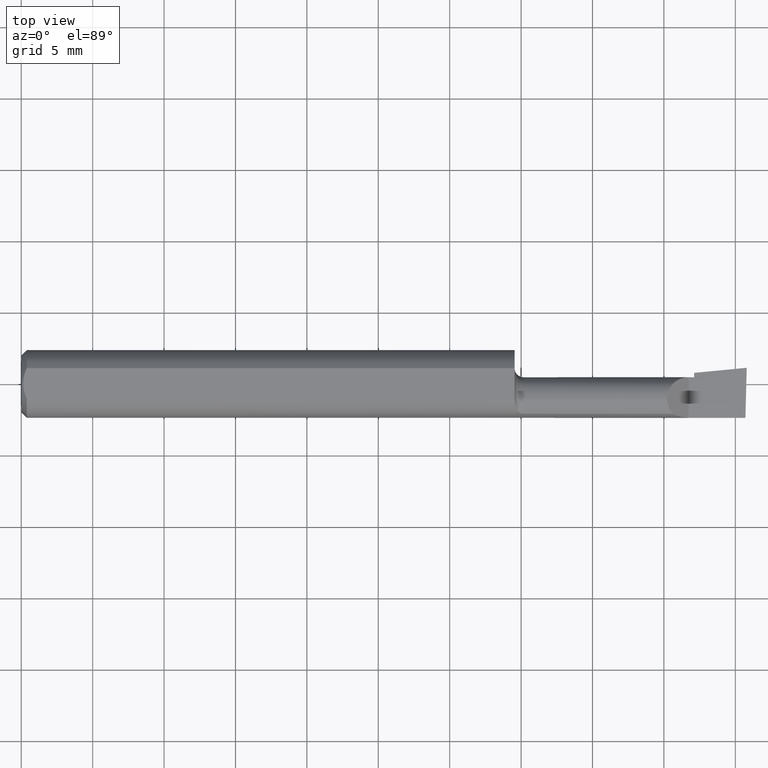
[diagram: clean part render]
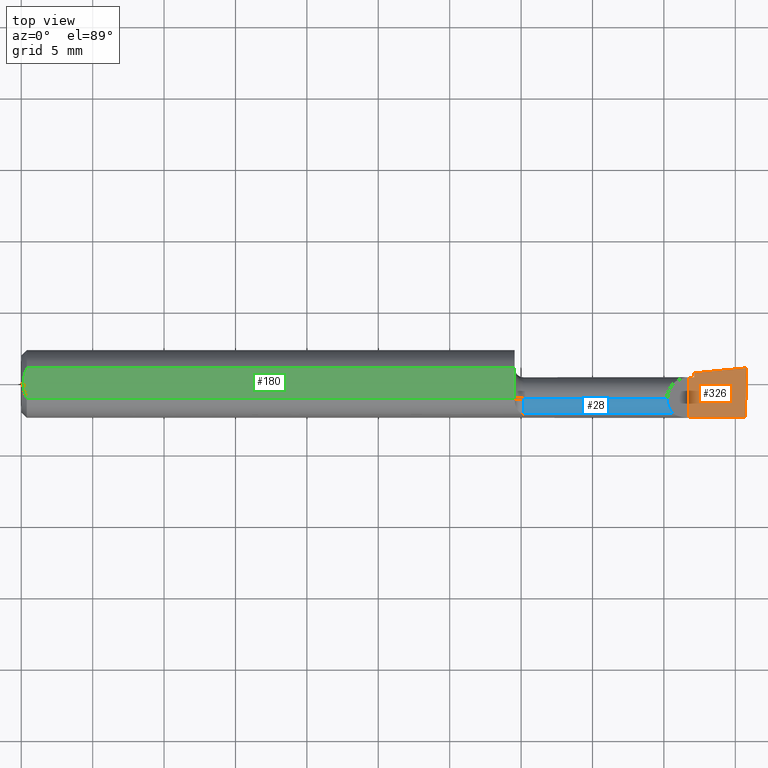
[diagram: same view with three faces highlighted in distinct colors, each labeled with its STEP entity id]
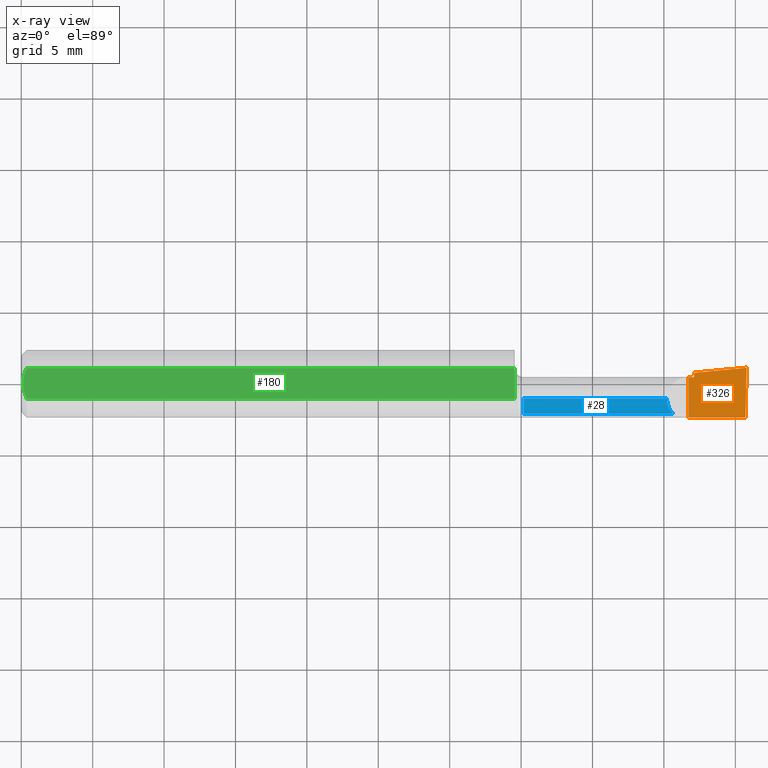
[diagram: x-ray of the same camera — body ghosted, the three highlighted faces saturated]
A machine part, top view with three faces highlighted in distinct colors.
The next image is the same camera in x-ray (body ghosted, the three faces saturated) — at least one of them is partly hidden behind the body in this view.
Their STEP definitions:

[orange] entity #326 — the highlighted planar face has unit normal (-0, 0, -1).
#14 = CARTESIAN_POINT ( 'NONE',  ( 1.854999999999999982, 0.01840000000000001010, 1.030335658007946637E-15 ) ) ;
#16 = DIRECTION ( 'NONE',  ( -0.0000000000000000000, 1.000000000000000000, -0.0000000000000000000 ) ) ;
#23 = VECTOR ( 'NONE', #296, 39.37007874015748143 ) ;
#52 = DIRECTION ( 'NONE',  ( 0.02617694830786378504, 0.9996573249755575929, -1.459184416195593542E-17 ) ) ;
#54 = VERTEX_POINT ( 'NONE', #14 ) ;
#55 = PLANE ( 'NONE',  #80 ) ;
#65 = CARTESIAN_POINT ( 'NONE',  ( 1.996386342823452065, -0.09360000000000009979, -6.634435288474567089E-17 ) ) ;
#80 = AXIS2_PLACEMENT_3D ( 'NONE', #566, #355, #97 ) ;
#97 = DIRECTION ( 'NONE',  ( -1.000000000000000000, 0.0000000000000000000, 5.493159289247764363E-16 ) ) ;
#98 = ORIENTED_EDGE ( 'NONE', *, *, #357, .T. ) ;
#106 = CARTESIAN_POINT ( 'NONE',  ( 1.840000000000000080, -0.2500000000000000555, 1.959434878635762025E-17 ) ) ;
#111 = ORIENTED_EDGE ( 'NONE', *, *, #197, .F. ) ;
#133 = VERTEX_POINT ( 'NONE', #466 ) ;
#143 = EDGE_CURVE ( 'NONE', #547, #144, #210, .T. ) ;
#144 = VERTEX_POINT ( 'NONE', #218 ) ;
#151 = VERTEX_POINT ( 'NONE', #65 ) ;
#154 = LINE ( 'NONE', #339, #23 ) ;
#158 = CARTESIAN_POINT ( 'NONE',  ( 1.992296147241039872, -0.2497982675158734178, -6.406435080701882457E-17 ) ) ;
#187 = CARTESIAN_POINT ( 'NONE',  ( 1.840000000000000080, -0.09360000000000005815, 1.959434878635762025E-17 ) ) ;
#188 = CARTESIAN_POINT ( 'NONE',  ( 5.659797890829555466E-31, 0.01839999999999996499, 1.030335658007946046E-15 ) ) ;
#193 = LINE ( 'NONE', #592, #610 ) ;
#197 = EDGE_CURVE ( 'NONE', #144, #54, #581, .T. ) ;
#201 = EDGE_CURVE ( 'NONE', #151, #547, #193, .T. ) ;
#210 = LINE ( 'NONE', #106, #591 ) ;
#218 = CARTESIAN_POINT ( 'NONE',  ( 1.840000000000000080, 0.01839999999999989908, 1.959434878635762025E-17 ) ) ;
#243 = DIRECTION ( 'NONE',  ( 1.000000000000000000, 0.0000000000000000000, 0.0000000000000000000 ) ) ;
#255 = EDGE_LOOP ( 'NONE', ( #400, #98, #499, #392, #111, #655 ) ) ;
#286 = EDGE_CURVE ( 'NONE', #54, #307, #154, .T. ) ;
#296 = DIRECTION ( 'NONE',  ( 0.0000000000000000000, 1.000000000000000000, 0.0000000000000000000 ) ) ;
#300 = EDGE_CURVE ( 'NONE', #307, #133, #417, .T. ) ;
#307 = VERTEX_POINT ( 'NONE', #398 ) ;
#326 = ADVANCED_FACE ( 'NONE', ( #512 ), #55, .F. ) ;
#339 = CARTESIAN_POINT ( 'NONE',  ( 1.854999999999999982, -0.2500000000000000555, 1.135460985248596835E-17 ) ) ;
#344 = DIRECTION ( 'NONE',  ( 0.9953961983671787417, 0.09584575252022466130, -5.467869873542577569E-16 ) ) ;
#355 = DIRECTION ( 'NONE',  ( -5.493159289247764363E-16, 0.0000000000000000000, -1.000000000000000000 ) ) ;
#357 = EDGE_CURVE ( 'NONE', #151, #133, #656, .T. ) ;
#392 = ORIENTED_EDGE ( 'NONE', *, *, #286, .F. ) ;
#398 = CARTESIAN_POINT ( 'NONE',  ( 1.854999999999999982, 0.03043808801135919340, 1.030335791302337039E-15 ) ) ;
#400 = ORIENTED_EDGE ( 'NONE', *, *, #201, .F. ) ;
#417 = LINE ( 'NONE', #652, #602 ) ;
#466 = CARTESIAN_POINT ( 'NONE',  ( 2.000000000000003997, 0.04440000000001216585, 3.857881588552751992E-14 ) ) ;
#499 = ORIENTED_EDGE ( 'NONE', *, *, #300, .F. ) ;
#504 = VECTOR ( 'NONE', #243, 39.37007874015748143 ) ;
#512 = FACE_OUTER_BOUND ( 'NONE', #255, .T. ) ;
#519 = VECTOR ( 'NONE', #52, 39.37007874015748854 ) ;
#539 = DIRECTION ( 'NONE',  ( -1.000000000000000000, -0.0000000000000000000, -0.0000000000000000000 ) ) ;
#547 = VERTEX_POINT ( 'NONE', #187 ) ;
#566 = CARTESIAN_POINT ( 'NONE',  ( 2.000000000000000000, -0.2500000000000000555, -6.829619984160658046E-17 ) ) ;
#581 = LINE ( 'NONE', #188, #504 ) ;
#591 = VECTOR ( 'NONE', #16, 39.37007874015748143 ) ;
#592 = CARTESIAN_POINT ( 'NONE',  ( 5.659797890829555466E-31, -0.09359999999999998876, 1.030335658007946046E-15 ) ) ;
#602 = VECTOR ( 'NONE', #344, 39.37007874015748143 ) ;
#610 = VECTOR ( 'NONE', #539, 39.37007874015748143 ) ;
#652 = CARTESIAN_POINT ( 'NONE',  ( 1.107894390816139163, -0.04150000000000000216, 4.217516215662293437E-16 ) ) ;
#655 = ORIENTED_EDGE ( 'NONE', *, *, #143, .F. ) ;
#656 = LINE ( 'NONE', #158, #519 ) ;

[blue] entity #28 — the highlighted cylindrical surface (edge-blend (fillet) strip) has radius 1.5215 mm, axis along (-1, -0, -0).
#9 = CARTESIAN_POINT ( 'NONE',  ( 1.785977184218892067, -0.07176861043311233423, 0.05402281578110743054 ) ) ;
#24 = ORIENTED_EDGE ( 'NONE', *, *, #421, .T. ) ;
#28 = ADVANCED_FACE ( 'NONE', ( #275 ), #372, .T. ) ;
#34 = CARTESIAN_POINT ( 'NONE',  ( 1.384999999999999787, -0.08307469879518060429, 0.04312255117789303566 ) ) ;
#48 = DIRECTION ( 'NONE',  ( -1.000000000000000000, -0.0000000000000000000, -0.0000000000000000000 ) ) ;
#50 = EDGE_LOOP ( 'NONE', ( #24, #515, #658, #155 ) ) ;
#71 = CARTESIAN_POINT ( 'NONE',  ( 1.619999999999999885, -0.08307469879518077083, 0.04312255117789289688 ) ) ;
#91 = CARTESIAN_POINT ( 'NONE',  ( 1.796877448822106649, -0.08307469879518074307, 0.04312255117789294545 ) ) ;
#107 = CARTESIAN_POINT ( 'NONE',  ( 1.780099999999999349, -0.05720488466914004644, 0.05989999999999997410 ) ) ;
#152 = EDGE_CURVE ( 'NONE', #510, #321, #174, .T. ) ;
#155 = ORIENTED_EDGE ( 'NONE', *, *, #458, .T. ) ;
#174 = CIRCLE ( 'NONE', #549, 0.05989999999999995328 ) ;
#275 = FACE_OUTER_BOUND ( 'NONE', #50, .T. ) ;
#280 = DIRECTION ( 'NONE',  ( 0.0000000000000000000, 0.0000000000000000000, 1.000000000000000000 ) ) ;
#304 = DIRECTION ( 'NONE',  ( -1.000000000000000000, -0.0000000000000000000, -0.0000000000000000000 ) ) ;
#306 = VERTEX_POINT ( 'NONE', #91 ) ;
#311 = DIRECTION ( 'NONE',  ( -1.000000000000000000, -0.0000000000000000000, -0.0000000000000000000 ) ) ;
#312 = EDGE_CURVE ( 'NONE', #365, #321, #560, .T. ) ;
#321 = VERTEX_POINT ( 'NONE', #360 ) ;
#351 = CARTESIAN_POINT ( 'NONE',  ( 1.780099999999999349, -0.04150000000000000216, 0.05989999999999998104 ) ) ;
#360 = CARTESIAN_POINT ( 'NONE',  ( 1.384999999999999787, -0.04150000000000001604, 0.05989999999999996022 ) ) ;
#365 = VERTEX_POINT ( 'NONE', #351 ) ;
#371 = DIRECTION ( 'NONE',  ( 1.000000000000000000, 0.0000000000000000000, 0.0000000000000000000 ) ) ;
#372 = CYLINDRICAL_SURFACE ( 'NONE', #442, 0.05989999999999998104 ) ;
#393 = CARTESIAN_POINT ( 'NONE',  ( 0.0000000000000000000, -0.04150000000000000216, 0.05989999999999998104 ) ) ;
#406 = VECTOR ( 'NONE', #48, 39.37007874015748143 ) ;
#421 = EDGE_CURVE ( 'NONE', #306, #365, #476, .T. ) ;
#442 = AXIS2_PLACEMENT_3D ( 'NONE', #563, #304, #555 ) ;
#458 = EDGE_CURVE ( 'NONE', #510, #306, #544, .T. ) ;
#460 = CARTESIAN_POINT ( 'NONE',  ( 1.796877448822106649, -0.08307469879518074307, 0.04312255117789294545 ) ) ;
#461 = CARTESIAN_POINT ( 'NONE',  ( 1.780099999999999349, -0.04150000000000000216, 0.05989999999999998104 ) ) ;
#476 =( BOUNDED_CURVE ( )  B_SPLINE_CURVE ( 3, ( #460, #9, #107, #461 ),
 .UNSPECIFIED., .F., .F. ) 
 B_SPLINE_CURVE_WITH_KNOTS ( ( 4, 4 ),
 ( 5.516060229395658432, 6.283185307179586232 ),
 .UNSPECIFIED. ) 
 CURVE ( )  GEOMETRIC_REPRESENTATION_ITEM ( )  RATIONAL_B_SPLINE_CURVE ( ( 1.000000000000000000, 0.9515582177473689285, 0.9515582177473689285, 1.000000000000000000 ) ) 
 REPRESENTATION_ITEM ( '' )  );
#487 = VECTOR ( 'NONE', #371, 39.37007874015748143 ) ;
#510 = VERTEX_POINT ( 'NONE', #34 ) ;
#515 = ORIENTED_EDGE ( 'NONE', *, *, #312, .T. ) ;
#544 = LINE ( 'NONE', #71, #487 ) ;
#549 = AXIS2_PLACEMENT_3D ( 'NONE', #609, #311, #280 ) ;
#555 = DIRECTION ( 'NONE',  ( 0.0000000000000000000, 0.0000000000000000000, 1.000000000000000000 ) ) ;
#560 = LINE ( 'NONE', #393, #406 ) ;
#563 = CARTESIAN_POINT ( 'NONE',  ( 0.0000000000000000000, -0.04150000000000000216, 0.0000000000000000000 ) ) ;
#609 = CARTESIAN_POINT ( 'NONE',  ( 1.384999999999999787, -0.04150000000000000216, 0.0000000000000000000 ) ) ;
#658 = ORIENTED_EDGE ( 'NONE', *, *, #152, .F. ) ;

[green] entity #180 — the highlighted planar face has unit normal (0, -0, -1).
#17 = CARTESIAN_POINT ( 'NONE',  ( 0.005981829149300843529, 0.01454044632356567453, 0.08360000000000003539 ) ) ;
#35 = CARTESIAN_POINT ( 'NONE',  ( 1.360033712670299932, -0.04209513035969834893, 0.08360000000000000764 ) ) ;
#38 = VERTEX_POINT ( 'NONE', #148 ) ;
#40 = EDGE_CURVE ( 'NONE', #176, #450, #514, .T. ) ;
#53 = DIRECTION ( 'NONE',  ( -1.000000000000000000, -0.0000000000000000000, -0.0000000000000000000 ) ) ;
#56 = FACE_OUTER_BOUND ( 'NONE', #494, .T. ) ;
#63 = CARTESIAN_POINT ( 'NONE',  ( 0.01499999999999999944, -0.04209513035969835587, 0.08360000000000000764 ) ) ;
#69 = LINE ( 'NONE', #613, #172 ) ;
#93 = DIRECTION ( 'NONE',  ( 1.000000000000000000, 0.0000000000000000000, 0.0000000000000000000 ) ) ;
#114 = CARTESIAN_POINT ( 'NONE',  ( 0.01499999999999999598, 0.04209513035969837669, 0.08360000000000000764 ) ) ;
#117 = LINE ( 'NONE', #649, #647 ) ;
#132 = CARTESIAN_POINT ( 'NONE',  ( 0.01499999999999999598, 0.04209513035969837669, 0.08360000000000000764 ) ) ;
#135 = CARTESIAN_POINT ( 'NONE',  ( 1.360033749376515555, -0.04199594133387060668, 0.08360000000000003539 ) ) ;
#137 = CARTESIAN_POINT ( 'NONE',  ( 0.009539353699420828961, -0.02875682547511369466, 0.08360000000000000764 ) ) ;
#145 = CARTESIAN_POINT ( 'NONE',  ( 1.360010473476444215, -0.03163306423249834243, 0.08360000000000000764 ) ) ;
#148 = CARTESIAN_POINT ( 'NONE',  ( 1.360033822879743504, -0.04150000000000001604, 0.08360000000000000764 ) ) ;
#163 = DIRECTION ( 'NONE',  ( 0.0000000000000000000, -1.000000000000000000, 1.189000693621284344E-16 ) ) ;
#164 = VECTOR ( 'NONE', #53, 39.37007874015748143 ) ;
#166 = CARTESIAN_POINT ( 'NONE',  ( 1.360033712670299932, -0.04209513035969834893, 0.08360000000000000764 ) ) ;
#169 = CARTESIAN_POINT ( 'NONE',  ( 2.000000000000000000, 0.1436000000000000332, 0.08359999999999999376 ) ) ;
#172 = VECTOR ( 'NONE', #163, 39.37007874015748143 ) ;
#176 = VERTEX_POINT ( 'NONE', #166 ) ;
#180 = ADVANCED_FACE ( 'NONE', ( #56 ), #226, .F. ) ;
#183 = B_SPLINE_CURVE_WITH_KNOTS ( 'NONE', 3,
 ( #297, #448, #137, #245, #401, #550 ),
 .UNSPECIFIED., .F., .F.,
 ( 4, 2, 4 ),
 ( 0.005785415439423114564, 0.006333348270144337384, 0.006881281100865560205 ),
 .UNSPECIFIED. ) ;
#203 = CARTESIAN_POINT ( 'NONE',  ( 1.359999999999999654, -0.02669966216601827105, 0.08360000000000000764 ) ) ;
#207 = ORIENTED_EDGE ( 'NONE', *, *, #481, .F. ) ;
#226 = PLANE ( 'NONE',  #630 ) ;
#245 = CARTESIAN_POINT ( 'NONE',  ( 0.005975039161239529238, -0.01453776427033147065, 0.08359999999999997988 ) ) ;
#246 = CARTESIAN_POINT ( 'NONE',  ( 1.360033822879743504, -0.04150000000000001604, 0.08360000000000000764 ) ) ;
#261 = EDGE_CURVE ( 'NONE', #450, #459, #183, .T. ) ;
#272 = CARTESIAN_POINT ( 'NONE',  ( 0.005000000000000225618, 0.007308422719211825694, 0.08360000000000000764 ) ) ;
#273 = ORIENTED_EDGE ( 'NONE', *, *, #279, .F. ) ;
#279 = EDGE_CURVE ( 'NONE', #318, #38, #637, .T. ) ;
#292 = CARTESIAN_POINT ( 'NONE',  ( 1.359999999999999654, -0.02916612216505918773, 0.08360000000000000764 ) ) ;
#297 = CARTESIAN_POINT ( 'NONE',  ( 0.01499999999999999944, -0.04209513035969835587, 0.08360000000000000764 ) ) ;
#318 = VERTEX_POINT ( 'NONE', #203 ) ;
#323 = EDGE_CURVE ( 'NONE', #574, #380, #117, .T. ) ;
#330 = CARTESIAN_POINT ( 'NONE',  ( 1.360033804492674303, -0.04179756391332128951, 0.08360000000000000764 ) ) ;
#335 = ORIENTED_EDGE ( 'NONE', *, *, #40, .F. ) ;
#349 = ORIENTED_EDGE ( 'NONE', *, *, #427, .F. ) ;
#358 = CARTESIAN_POINT ( 'NONE',  ( 1.359999999999999654, 0.04209513035969836975, 0.08360000000000000764 ) ) ;
#369 = ORIENTED_EDGE ( 'NONE', *, *, #323, .F. ) ;
#380 = VERTEX_POINT ( 'NONE', #358 ) ;
#389 = DIRECTION ( 'NONE',  ( 0.0000000000000000000, -1.189000693621284344E-16, -1.000000000000000000 ) ) ;
#401 = CARTESIAN_POINT ( 'NONE',  ( 0.005000000000000227353, -0.007328888879231044290, 0.08360000000000000764 ) ) ;
#413 = CARTESIAN_POINT ( 'NONE',  ( 0.005000000000000236026, 1.025183009042025117E-17, 0.08360000000000000764 ) ) ;
#427 = EDGE_CURVE ( 'NONE', #459, #574, #538, .T. ) ;
#437 = DIRECTION ( 'NONE',  ( 0.0000000000000000000, 1.000000000000000000, -1.189000693621284344E-16 ) ) ;
#446 = CARTESIAN_POINT ( 'NONE',  ( 1.359999999999999654, -0.02669966216601827105, 0.08360000000000000764 ) ) ;
#448 = CARTESIAN_POINT ( 'NONE',  ( 0.01206089165507025218, -0.03555991978469313225, 0.08360000000000000764 ) ) ;
#450 = VERTEX_POINT ( 'NONE', #63 ) ;
#459 = VERTEX_POINT ( 'NONE', #413 ) ;
#481 = EDGE_CURVE ( 'NONE', #380, #318, #69, .T. ) ;
#494 = EDGE_LOOP ( 'NONE', ( #273, #207, #369, #349, #502, #335, #568 ) ) ;
#497 = B_SPLINE_CURVE_WITH_KNOTS ( 'NONE', 3,
 ( #246, #603, #330, #135, #35 ),
 .UNSPECIFIED., .F., .F.,
 ( 4, 1, 4 ),
 ( 0.001137327269498854916, 0.001144877036798492079, 0.001152426804098129025 ),
 .UNSPECIFIED. ) ;
#501 = CARTESIAN_POINT ( 'NONE',  ( 1.360033822879743504, -0.03903342675892661207, 0.08360000000000000764 ) ) ;
#502 = ORIENTED_EDGE ( 'NONE', *, *, #261, .F. ) ;
#514 = LINE ( 'NONE', #660, #164 ) ;
#538 = B_SPLINE_CURVE_WITH_KNOTS ( 'NONE', 3,
 ( #618, #272, #17, #622, #572, #114 ),
 .UNSPECIFIED., .F., .F.,
 ( 4, 2, 4 ),
 ( 0.006881281100865560205, 0.007427683811376459971, 0.007974086521887359738 ),
 .UNSPECIFIED. ) ;
#550 = CARTESIAN_POINT ( 'NONE',  ( 0.005000000000000236026, 1.025183009042025117E-17, 0.08360000000000000764 ) ) ;
#568 = ORIENTED_EDGE ( 'NONE', *, *, #657, .F. ) ;
#572 = CARTESIAN_POINT ( 'NONE',  ( 0.01203648650249651043, 0.03550565407121124978, 0.08360000000000000764 ) ) ;
#574 = VERTEX_POINT ( 'NONE', #132 ) ;
#603 = CARTESIAN_POINT ( 'NONE',  ( 1.360033822879743282, -0.04159918775969437960, 0.08360000000000000764 ) ) ;
#613 = CARTESIAN_POINT ( 'NONE',  ( 1.359999999999999654, 0.1436000000000000332, 0.08359999999999999376 ) ) ;
#618 = CARTESIAN_POINT ( 'NONE',  ( 0.005000000000000236026, 1.025183009042025117E-17, 0.08360000000000000764 ) ) ;
#622 = CARTESIAN_POINT ( 'NONE',  ( 0.009492654797564338900, 0.02859466010166627700, 0.08360000000000000764 ) ) ;
#630 = AXIS2_PLACEMENT_3D ( 'NONE', #169, #389, #437 ) ;
#637 = B_SPLINE_CURVE_WITH_KNOTS ( 'NONE', 3,
 ( #446, #292, #145, #643, #501, #653 ),
 .UNSPECIFIED., .F., .F.,
 ( 4, 2, 4 ),
 ( 0.0007618363005527831839, 0.0009495817850258189956, 0.001137327269498854916 ),
 .UNSPECIFIED. ) ;
#643 = CARTESIAN_POINT ( 'NONE',  ( 1.360027419345087196, -0.03656676420729536303, 0.08359999999999997988 ) ) ;
#647 = VECTOR ( 'NONE', #93, 39.37007874015748143 ) ;
#649 = CARTESIAN_POINT ( 'NONE',  ( 0.0000000000000000000, 0.04209513035969837669, 0.08360000000000000764 ) ) ;
#653 = CARTESIAN_POINT ( 'NONE',  ( 1.360033822879743504, -0.04150000000000001604, 0.08360000000000000764 ) ) ;
#657 = EDGE_CURVE ( 'NONE', #38, #176, #497, .T. ) ;
#660 = CARTESIAN_POINT ( 'NONE',  ( 0.0000000000000000000, -0.04209513035969835587, 0.08360000000000000764 ) ) ;